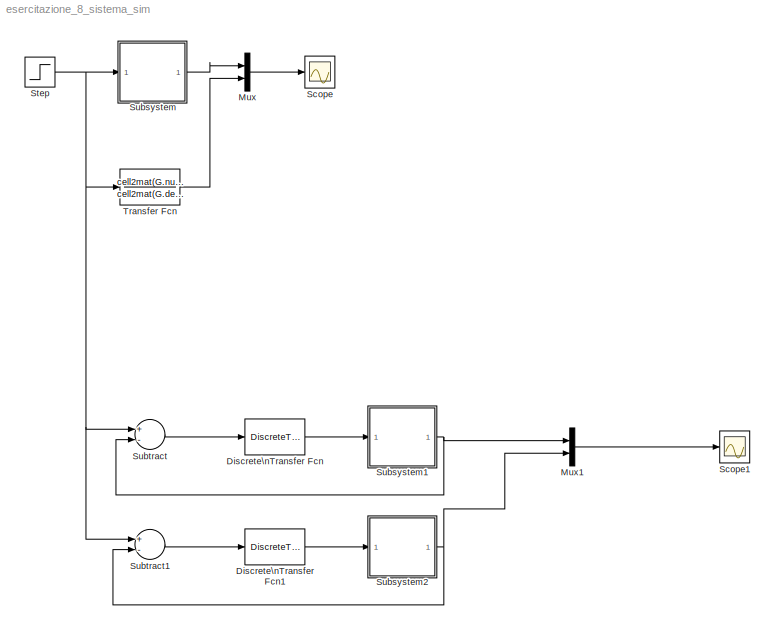
MODEL esercitazione_8_sistema_sim
KIND model
BLOCK [DiscreteTransferFcn] Discrete\nTransfer Fcn
  Denominator = cell2mat(PI1d.den)
  InputPortMap = u0
  Numerator = cell2mat(PI1d.num)
  Ports = [1, 1]
  SID = 15
  SampleTime = Ts
BLOCK [DiscreteTransferFcn] Discrete\nTransfer Fcn1
  Denominator = cell2mat(PID2d.den)
  InputPortMap = u0
  Numerator = cell2mat(PID2d.num)
  Ports = [1, 1]
  SID = 27
  SampleTime = Ts
BLOCK [Mux] Mux
  DisplayOption = bar
  Inputs = 2
  Ports = [2, 1]
  SID = 13
BLOCK [Mux] Mux1
  DisplayOption = bar
  Inputs = 2
  Ports = [2, 1]
  SID = 38
BLOCK [Scope] Scope
  Floating = off
  NumInputPorts = 1
  Ports = [1]
  SID = 11
BLOCK [Scope] Scope1
  Floating = off
  LimitDataPoints = off
  MaxDataPoints = 50000
  NumInputPorts = 1
  Ports = [1]
  SID = 26
  SaveName = ScopeData1
BLOCK [Step] Step
  SID = 10
  SampleTime = 0
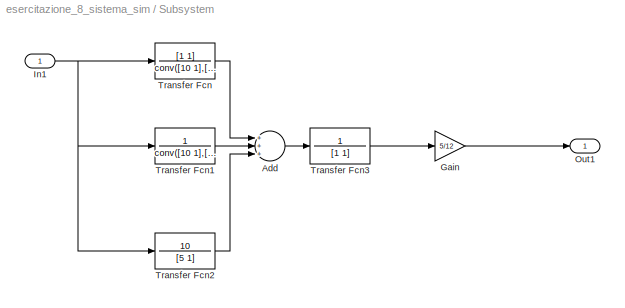
BLOCK [SubSystem] Subsystem
  Ports = [1, 1]
  RequestExecContextInheritance = off
  SID = 1
BLOCK [Sum] Subsystem/Add
  InputSameDT = off
  Inputs = +++
  OutDataTypeStr = Inherit: Inherit via internal rule
  Ports = [3, 1]
  SID = 3
  SaturateOnIntegerOverflow = off
BLOCK [Gain] Subsystem/Gain
  Gain = 5/12
  OutDataTypeStr = Inherit: Inherit via internal rule
  ParamDataTypeStr = Inherit: Inherit via internal rule
  SID = 4
  SaturateOnIntegerOverflow = off
BLOCK [Inport] Subsystem/In1
  IconDisplay = Port number
  SID = 2
BLOCK [Outport] Subsystem/Out1
  IconDisplay = Port number
  SID = 9
BLOCK [TransferFcn] Subsystem/Transfer Fcn
  Denominator = conv([10 1],[0.1 1])
  Numerator = [1 1]
  SID = 5
BLOCK [TransferFcn] Subsystem/Transfer Fcn1
  Denominator = conv([10 1],[2 1])
  Numerator = 1
  SID = 6
BLOCK [TransferFcn] Subsystem/Transfer Fcn2
  Denominator = [5 1]
  Numerator = 10
  SID = 7
BLOCK [TransferFcn] Subsystem/Transfer Fcn3
  Numerator = 1
  SID = 8
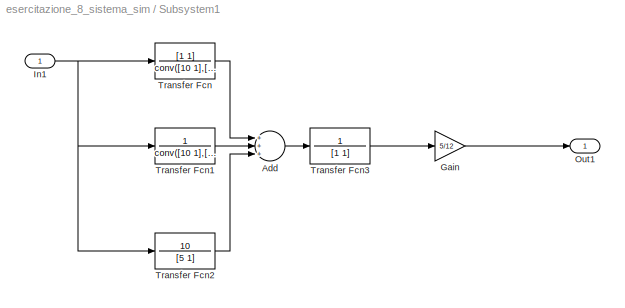
BLOCK [SubSystem] Subsystem1
  Ports = [1, 1]
  RequestExecContextInheritance = off
  SID = 16
BLOCK [Sum] Subsystem1/Add
  InputSameDT = off
  Inputs = +++
  OutDataTypeStr = Inherit: Inherit via internal rule
  Ports = [3, 1]
  SID = 18
  SaturateOnIntegerOverflow = off
BLOCK [Gain] Subsystem1/Gain
  Gain = 5/12
  OutDataTypeStr = Inherit: Inherit via internal rule
  ParamDataTypeStr = Inherit: Inherit via internal rule
  SID = 19
  SaturateOnIntegerOverflow = off
BLOCK [Inport] Subsystem1/In1
  IconDisplay = Port number
  SID = 17
BLOCK [Outport] Subsystem1/Out1
  IconDisplay = Port number
  SID = 24
BLOCK [TransferFcn] Subsystem1/Transfer Fcn
  Denominator = conv([10 1],[0.1 1])
  Numerator = [1 1]
  SID = 20
BLOCK [TransferFcn] Subsystem1/Transfer Fcn1
  Denominator = conv([10 1],[2 1])
  Numerator = 1
  SID = 21
BLOCK [TransferFcn] Subsystem1/Transfer Fcn2
  Denominator = [5 1]
  Numerator = 10
  SID = 22
BLOCK [TransferFcn] Subsystem1/Transfer Fcn3
  Numerator = 1
  SID = 23
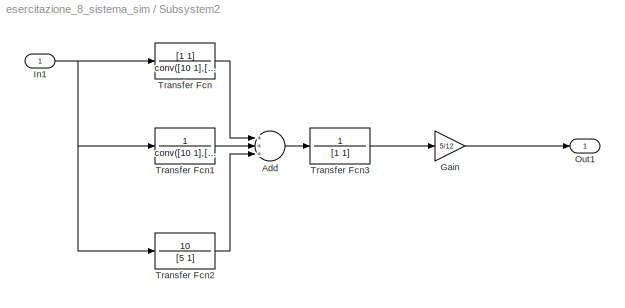
BLOCK [SubSystem] Subsystem2
  Ports = [1, 1]
  RequestExecContextInheritance = off
  SID = 28
BLOCK [Sum] Subsystem2/Add
  InputSameDT = off
  Inputs = +++
  OutDataTypeStr = Inherit: Inherit via internal rule
  Ports = [3, 1]
  SID = 30
  SaturateOnIntegerOverflow = off
BLOCK [Gain] Subsystem2/Gain
  Gain = 5/12
  OutDataTypeStr = Inherit: Inherit via internal rule
  ParamDataTypeStr = Inherit: Inherit via internal rule
  SID = 31
  SaturateOnIntegerOverflow = off
BLOCK [Inport] Subsystem2/In1
  IconDisplay = Port number
  SID = 29
BLOCK [Outport] Subsystem2/Out1
  IconDisplay = Port number
  SID = 36
BLOCK [TransferFcn] Subsystem2/Transfer Fcn
  Denominator = conv([10 1],[0.1 1])
  Numerator = [1 1]
  SID = 32
BLOCK [TransferFcn] Subsystem2/Transfer Fcn1
  Denominator = conv([10 1],[2 1])
  Numerator = 1
  SID = 33
BLOCK [TransferFcn] Subsystem2/Transfer Fcn2
  Denominator = [5 1]
  Numerator = 10
  SID = 34
BLOCK [TransferFcn] Subsystem2/Transfer Fcn3
  Numerator = 1
  SID = 35
BLOCK [Sum] Subtract
  InputSameDT = off
  Inputs = +-
  OutDataTypeStr = Inherit: Inherit via internal rule
  Ports = [2, 1]
  SID = 25
  SaturateOnIntegerOverflow = off
BLOCK [Sum] Subtract1
  InputSameDT = off
  Inputs = +-
  OutDataTypeStr = Inherit: Inherit via internal rule
  Ports = [2, 1]
  SID = 37
  SaturateOnIntegerOverflow = off
BLOCK [TransferFcn] Transfer Fcn
  Denominator = cell2mat(G.den)
  Numerator = cell2mat(G.num)
  SID = 12
LINE Discrete\nTransfer Fcn1:1 -> Subsystem2:1
LINE Discrete\nTransfer Fcn:1 -> Subsystem1:1
LINE Mux1:1 -> Scope1:1
LINE Mux:1 -> Scope:1
NET Step:1 -> Subsystem:1, Subtract1:1, Subtract:1, Transfer Fcn:1
LINE Subsystem/Add:1 -> Subsystem/Transfer Fcn3:1
LINE Subsystem/Gain:1 -> Subsystem/Out1:1
NET Subsystem/In1:1 -> Subsystem/Transfer Fcn1:1, Subsystem/Transfer Fcn2:1, Subsystem/Transfer Fcn:1
LINE Subsystem/Transfer Fcn1:1 -> Subsystem/Add:2
LINE Subsystem/Transfer Fcn2:1 -> Subsystem/Add:3
LINE Subsystem/Transfer Fcn3:1 -> Subsystem/Gain:1
LINE Subsystem/Transfer Fcn:1 -> Subsystem/Add:1
LINE Subsystem1/Add:1 -> Subsystem1/Transfer Fcn3:1
LINE Subsystem1/Gain:1 -> Subsystem1/Out1:1
NET Subsystem1/In1:1 -> Subsystem1/Transfer Fcn1:1, Subsystem1/Transfer Fcn2:1, Subsystem1/Transfer Fcn:1
LINE Subsystem1/Transfer Fcn1:1 -> Subsystem1/Add:2
LINE Subsystem1/Transfer Fcn2:1 -> Subsystem1/Add:3
LINE Subsystem1/Transfer Fcn3:1 -> Subsystem1/Gain:1
LINE Subsystem1/Transfer Fcn:1 -> Subsystem1/Add:1
NET Subsystem1:1 -> Mux1:1, Subtract:2
LINE Subsystem2/Add:1 -> Subsystem2/Transfer Fcn3:1
LINE Subsystem2/Gain:1 -> Subsystem2/Out1:1
NET Subsystem2/In1:1 -> Subsystem2/Transfer Fcn1:1, Subsystem2/Transfer Fcn2:1, Subsystem2/Transfer Fcn:1
LINE Subsystem2/Transfer Fcn1:1 -> Subsystem2/Add:2
LINE Subsystem2/Transfer Fcn2:1 -> Subsystem2/Add:3
LINE Subsystem2/Transfer Fcn3:1 -> Subsystem2/Gain:1
LINE Subsystem2/Transfer Fcn:1 -> Subsystem2/Add:1
NET Subsystem2:1 -> Mux1:2, Subtract1:2
LINE Subsystem:1 -> Mux:1
LINE Subtract1:1 -> Discrete\nTransfer Fcn1:1
LINE Subtract:1 -> Discrete\nTransfer Fcn:1
LINE Transfer Fcn:1 -> Mux:2
note: NET lines group one-source signal fan-out (src -> all destinations, sorted); 1:1 wires keep LINE
